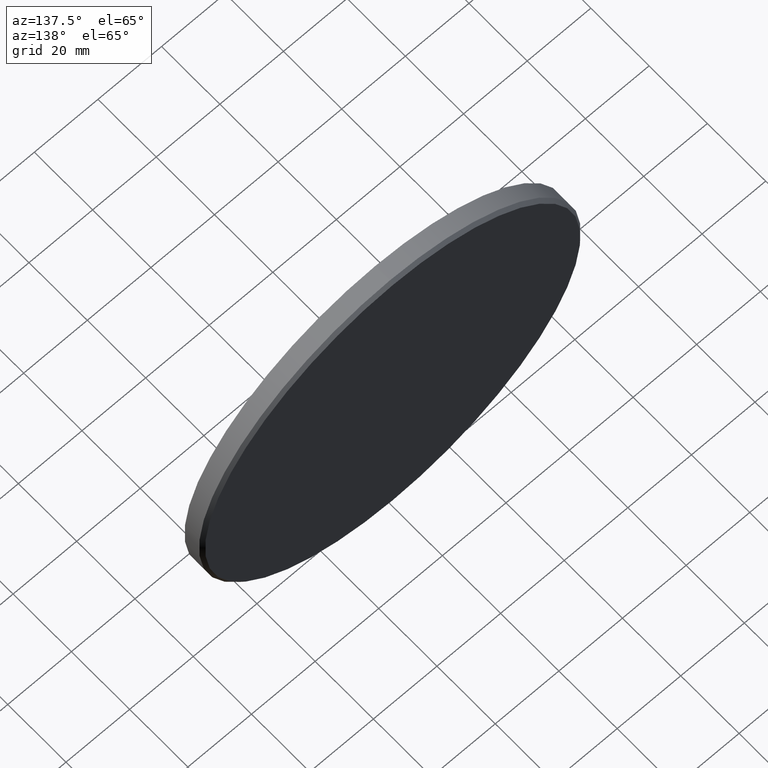
[diagram: clean part render]
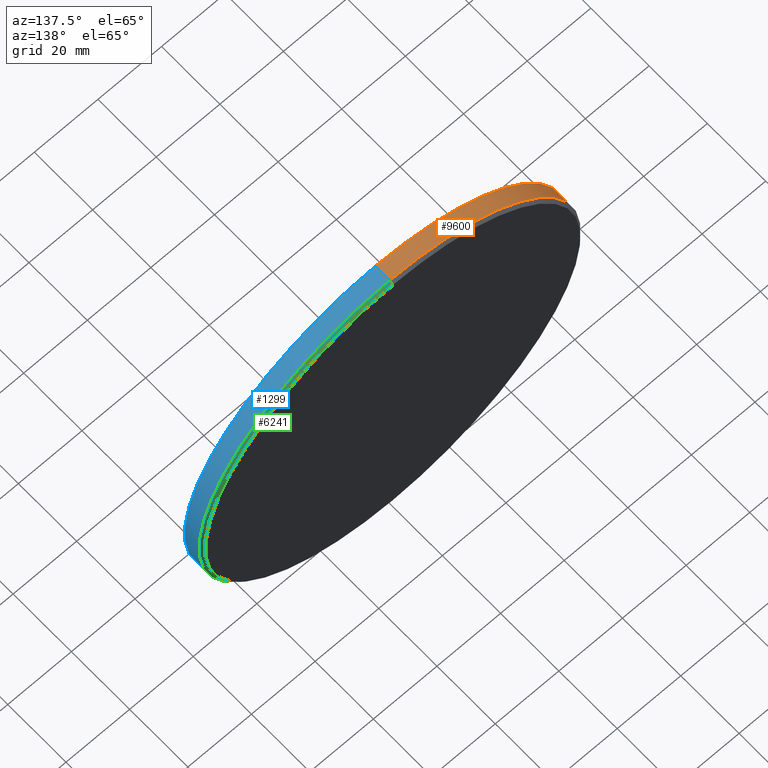
[diagram: same view with three faces highlighted in distinct colors, each labeled with its STEP entity id]
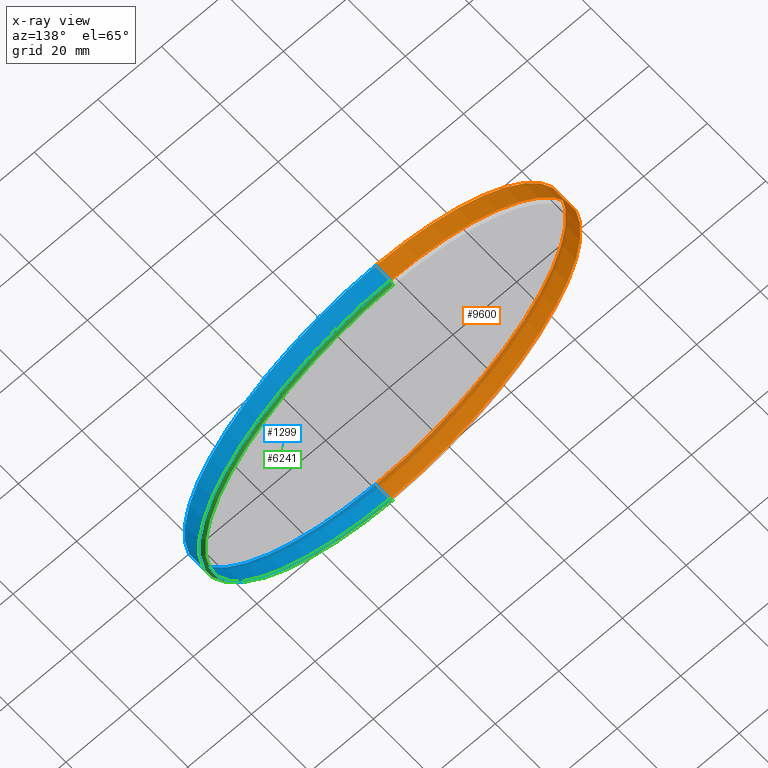
[diagram: x-ray of the same camera — body ghosted, the three highlighted faces saturated]
A machine part, auxiliary view with three faces highlighted in distinct colors.
The next image is the same camera in x-ray (body ghosted, the three faces saturated) — at least one of them is partly hidden behind the body in this view.
Their STEP definitions:

[orange] entity #9600 — the highlighted cylindrical surface (partial cylindrical patch) has radius 60 mm, axis along (-0, -1, -0).
#233 = CARTESIAN_POINT ( 'NONE',  ( 0.000000000000000000, -3.000000000000000000, 0.000000000000000000 ) ) ;
#424 = DIRECTION ( 'NONE',  ( 0.000000000000000000, 0.000000000000000000, -1.000000000000000000 ) ) ;
#684 = VECTOR ( 'NONE', #9785, 1000.000000000000000 ) ;
#1251 = EDGE_LOOP ( 'NONE', ( #10684, #1346, #8389, #5750 ) ) ;
#1346 = ORIENTED_EDGE ( 'NONE', *, *, #12110, .T. ) ;
#1391 = DIRECTION ( 'NONE',  ( 0.000000000000000000, 1.000000000000000000, 0.000000000000000000 ) ) ;
#2152 = CARTESIAN_POINT ( 'NONE',  ( 7.347880794884118356E-15, 3.000000000000000000, 60.00000000000000000 ) ) ;
#2234 = AXIS2_PLACEMENT_3D ( 'NONE', #8735, #9847, #5050 ) ;
#2447 = CARTESIAN_POINT ( 'NONE',  ( 7.347880794884118356E-15, -3.000000000000000000, 60.00000000000000000 ) ) ;
#2590 = CARTESIAN_POINT ( 'NONE',  ( 0.000000000000000000, 3.000000000000000000, 0.000000000000000000 ) ) ;
#4102 = AXIS2_PLACEMENT_3D ( 'NONE', #233, #1391, #9065 ) ;
#4354 = VECTOR ( 'NONE', #12093, 1000.000000000000000 ) ;
#4425 = VERTEX_POINT ( 'NONE', #8000 ) ;
#4512 = CARTESIAN_POINT ( 'NONE',  ( 0.000000000000000000, 3.000000000000000000, -60.00000000000000000 ) ) ;
#5050 = DIRECTION ( 'NONE',  ( 0.000000000000000000, 0.000000000000000000, 1.000000000000000000 ) ) ;
#5060 = CYLINDRICAL_SURFACE ( 'NONE', #10832, 60.00000000000000000 ) ;
#5061 = EDGE_CURVE ( 'NONE', #6419, #6970, #10335, .T. ) ;
#5750 = ORIENTED_EDGE ( 'NONE', *, *, #5061, .T. ) ;
#6410 = EDGE_CURVE ( 'NONE', #4425, #6419, #12692, .T. ) ;
#6419 = VERTEX_POINT ( 'NONE', #9907 ) ;
#6970 = VERTEX_POINT ( 'NONE', #2447 ) ;
#6979 = DIRECTION ( 'NONE',  ( -0.000000000000000000, -1.000000000000000000, -0.000000000000000000 ) ) ;
#7685 = LINE ( 'NONE', #2152, #684 ) ;
#8000 = CARTESIAN_POINT ( 'NONE',  ( 0.000000000000000000, 1.999999999999971356, -60.00000000000000000 ) ) ;
#8389 = ORIENTED_EDGE ( 'NONE', *, *, #6410, .T. ) ;
#8469 = FACE_OUTER_BOUND ( 'NONE', #1251, .T. ) ;
#8735 = CARTESIAN_POINT ( 'NONE',  ( 0.000000000000000000, 1.999999999999971356, 0.000000000000000000 ) ) ;
#8980 = VERTEX_POINT ( 'NONE', #13529 ) ;
#9065 = DIRECTION ( 'NONE',  ( 0.000000000000000000, 0.000000000000000000, 1.000000000000000000 ) ) ;
#9409 = CIRCLE ( 'NONE', #2234, 60.00000000000000000 ) ;
#9600 = ADVANCED_FACE ( 'NONE', ( #8469 ), #5060, .T. ) ;
#9785 = DIRECTION ( 'NONE',  ( -0.000000000000000000, -1.000000000000000000, -0.000000000000000000 ) ) ;
#9847 = DIRECTION ( 'NONE',  ( 0.000000000000000000, -1.000000000000000000, 0.000000000000000000 ) ) ;
#9907 = CARTESIAN_POINT ( 'NONE',  ( 0.000000000000000000, -3.000000000000000000, -60.00000000000000000 ) ) ;
#10335 = CIRCLE ( 'NONE', #4102, 60.00000000000000000 ) ;
#10684 = ORIENTED_EDGE ( 'NONE', *, *, #12524, .F. ) ;
#10832 = AXIS2_PLACEMENT_3D ( 'NONE', #2590, #6979, #424 ) ;
#12093 = DIRECTION ( 'NONE',  ( -0.000000000000000000, -1.000000000000000000, -0.000000000000000000 ) ) ;
#12110 = EDGE_CURVE ( 'NONE', #8980, #4425, #9409, .T. ) ;
#12524 = EDGE_CURVE ( 'NONE', #8980, #6970, #7685, .T. ) ;
#12692 = LINE ( 'NONE', #4512, #4354 ) ;
#13529 = CARTESIAN_POINT ( 'NONE',  ( 7.347880794884118356E-15, 1.999999999999971356, 60.00000000000000000 ) ) ;

[blue] entity #1299 — the highlighted cylindrical surface (partial cylindrical patch) has radius 60 mm, axis along (-0, -1, -0).
#559 = ORIENTED_EDGE ( 'NONE', *, *, #12524, .T. ) ;
#637 = CYLINDRICAL_SURFACE ( 'NONE', #5646, 60.00000000000000000 ) ;
#684 = VECTOR ( 'NONE', #9785, 1000.000000000000000 ) ;
#1033 = ORIENTED_EDGE ( 'NONE', *, *, #1110, .T. ) ;
#1110 = EDGE_CURVE ( 'NONE', #4425, #8980, #8129, .T. ) ;
#1299 = ADVANCED_FACE ( 'NONE', ( #11754 ), #637, .T. ) ;
#2152 = CARTESIAN_POINT ( 'NONE',  ( 7.347880794884118356E-15, 3.000000000000000000, 60.00000000000000000 ) ) ;
#2343 = ORIENTED_EDGE ( 'NONE', *, *, #6410, .F. ) ;
#2447 = CARTESIAN_POINT ( 'NONE',  ( 7.347880794884118356E-15, -3.000000000000000000, 60.00000000000000000 ) ) ;
#3631 = EDGE_LOOP ( 'NONE', ( #1033, #559, #7331, #2343 ) ) ;
#3946 = CARTESIAN_POINT ( 'NONE',  ( 0.000000000000000000, 3.000000000000000000, 0.000000000000000000 ) ) ;
#4354 = VECTOR ( 'NONE', #12093, 1000.000000000000000 ) ;
#4425 = VERTEX_POINT ( 'NONE', #8000 ) ;
#4512 = CARTESIAN_POINT ( 'NONE',  ( 0.000000000000000000, 3.000000000000000000, -60.00000000000000000 ) ) ;
#5137 = CARTESIAN_POINT ( 'NONE',  ( 0.000000000000000000, 1.999999999999971356, 0.000000000000000000 ) ) ;
#5500 = CARTESIAN_POINT ( 'NONE',  ( 0.000000000000000000, -3.000000000000000000, 0.000000000000000000 ) ) ;
#5646 = AXIS2_PLACEMENT_3D ( 'NONE', #3946, #12510, #10440 ) ;
#5701 = AXIS2_PLACEMENT_3D ( 'NONE', #5500, #14066, #13060 ) ;
#6410 = EDGE_CURVE ( 'NONE', #4425, #6419, #12692, .T. ) ;
#6419 = VERTEX_POINT ( 'NONE', #9907 ) ;
#6970 = VERTEX_POINT ( 'NONE', #2447 ) ;
#7331 = ORIENTED_EDGE ( 'NONE', *, *, #10643, .T. ) ;
#7685 = LINE ( 'NONE', #2152, #684 ) ;
#8000 = CARTESIAN_POINT ( 'NONE',  ( 0.000000000000000000, 1.999999999999971356, -60.00000000000000000 ) ) ;
#8129 = CIRCLE ( 'NONE', #9376, 60.00000000000000000 ) ;
#8470 = DIRECTION ( 'NONE',  ( 0.000000000000000000, 0.000000000000000000, 1.000000000000000000 ) ) ;
#8980 = VERTEX_POINT ( 'NONE', #13529 ) ;
#9376 = AXIS2_PLACEMENT_3D ( 'NONE', #5137, #9586, #8470 ) ;
#9436 = CIRCLE ( 'NONE', #5701, 60.00000000000000000 ) ;
#9586 = DIRECTION ( 'NONE',  ( 0.000000000000000000, -1.000000000000000000, 0.000000000000000000 ) ) ;
#9785 = DIRECTION ( 'NONE',  ( -0.000000000000000000, -1.000000000000000000, -0.000000000000000000 ) ) ;
#9907 = CARTESIAN_POINT ( 'NONE',  ( 0.000000000000000000, -3.000000000000000000, -60.00000000000000000 ) ) ;
#10440 = DIRECTION ( 'NONE',  ( 0.000000000000000000, 0.000000000000000000, -1.000000000000000000 ) ) ;
#10643 = EDGE_CURVE ( 'NONE', #6970, #6419, #9436, .T. ) ;
#11754 = FACE_OUTER_BOUND ( 'NONE', #3631, .T. ) ;
#12093 = DIRECTION ( 'NONE',  ( -0.000000000000000000, -1.000000000000000000, -0.000000000000000000 ) ) ;
#12510 = DIRECTION ( 'NONE',  ( -0.000000000000000000, -1.000000000000000000, -0.000000000000000000 ) ) ;
#12524 = EDGE_CURVE ( 'NONE', #8980, #6970, #7685, .T. ) ;
#12692 = LINE ( 'NONE', #4512, #4354 ) ;
#13060 = DIRECTION ( 'NONE',  ( 0.000000000000000000, 0.000000000000000000, 1.000000000000000000 ) ) ;
#13529 = CARTESIAN_POINT ( 'NONE',  ( 7.347880794884118356E-15, 1.999999999999971356, 60.00000000000000000 ) ) ;
#14066 = DIRECTION ( 'NONE',  ( 0.000000000000000000, 1.000000000000000000, 0.000000000000000000 ) ) ;

[green] entity #6241 — the highlighted conical surface has half-angle 45 deg.
#46 = EDGE_LOOP ( 'NONE', ( #584, #10085, #5457, #6533 ) ) ;
#584 = ORIENTED_EDGE ( 'NONE', *, *, #9924, .F. ) ;
#878 = CARTESIAN_POINT ( 'NONE',  ( 0.000000000000000000, 3.000000000000000000, -58.99999999999998579 ) ) ;
#1110 = EDGE_CURVE ( 'NONE', #4425, #8980, #8129, .T. ) ;
#1313 = EDGE_CURVE ( 'NONE', #13883, #8980, #1855, .T. ) ;
#1571 = CARTESIAN_POINT ( 'NONE',  ( 0.000000000000000000, 3.000000000000000000, -58.99999999999998579 ) ) ;
#1855 = LINE ( 'NONE', #8170, #5086 ) ;
#1889 = DIRECTION ( 'NONE',  ( 0.000000000000000000, -0.7071067811865524577, -0.7071067811865426878 ) ) ;
#2014 = AXIS2_PLACEMENT_3D ( 'NONE', #13893, #11777, #13735 ) ;
#2060 = EDGE_CURVE ( 'NONE', #5687, #4425, #11230, .T. ) ;
#3291 = DIRECTION ( 'NONE',  ( 0.000000000000000000, 1.000000000000000000, 0.000000000000000000 ) ) ;
#3462 = CIRCLE ( 'NONE', #7689, 58.99999999999998579 ) ;
#3657 = FACE_OUTER_BOUND ( 'NONE', #46, .T. ) ;
#4425 = VERTEX_POINT ( 'NONE', #8000 ) ;
#5086 = VECTOR ( 'NONE', #10390, 1000.000000000000000 ) ;
#5137 = CARTESIAN_POINT ( 'NONE',  ( 0.000000000000000000, 1.999999999999971356, 0.000000000000000000 ) ) ;
#5200 = CONICAL_SURFACE ( 'NONE', #2014, 58.99999999999998579, 0.7853981633974415066 ) ;
#5299 = CARTESIAN_POINT ( 'NONE',  ( 0.000000000000000000, 3.000000000000000000, 0.000000000000000000 ) ) ;
#5457 = ORIENTED_EDGE ( 'NONE', *, *, #1110, .F. ) ;
#5687 = VERTEX_POINT ( 'NONE', #1571 ) ;
#6241 = ADVANCED_FACE ( 'NONE', ( #3657 ), #5200, .T. ) ;
#6533 = ORIENTED_EDGE ( 'NONE', *, *, #2060, .F. ) ;
#6737 = CARTESIAN_POINT ( 'NONE',  ( 7.286648454926750781E-15, 3.000000000000000000, 58.99999999999998579 ) ) ;
#6946 = VECTOR ( 'NONE', #1889, 1000.000000000000000 ) ;
#7689 = AXIS2_PLACEMENT_3D ( 'NONE', #5299, #3291, #11016 ) ;
#8000 = CARTESIAN_POINT ( 'NONE',  ( 0.000000000000000000, 1.999999999999971356, -60.00000000000000000 ) ) ;
#8129 = CIRCLE ( 'NONE', #9376, 60.00000000000000000 ) ;
#8170 = CARTESIAN_POINT ( 'NONE',  ( 7.225416114969381630E-15, 3.000000000000000000, 58.99999999999998579 ) ) ;
#8470 = DIRECTION ( 'NONE',  ( 0.000000000000000000, 0.000000000000000000, 1.000000000000000000 ) ) ;
#8980 = VERTEX_POINT ( 'NONE', #13529 ) ;
#9376 = AXIS2_PLACEMENT_3D ( 'NONE', #5137, #9586, #8470 ) ;
#9586 = DIRECTION ( 'NONE',  ( 0.000000000000000000, -1.000000000000000000, 0.000000000000000000 ) ) ;
#9924 = EDGE_CURVE ( 'NONE', #13883, #5687, #3462, .T. ) ;
#10085 = ORIENTED_EDGE ( 'NONE', *, *, #1313, .T. ) ;
#10390 = DIRECTION ( 'NONE',  ( 8.659560562354874926E-17, -0.7071067811865524577, 0.7071067811865426878 ) ) ;
#11016 = DIRECTION ( 'NONE',  ( 0.000000000000000000, 0.000000000000000000, 1.000000000000000000 ) ) ;
#11230 = LINE ( 'NONE', #878, #6946 ) ;
#11777 = DIRECTION ( 'NONE',  ( 0.000000000000000000, -1.000000000000000000, 0.000000000000000000 ) ) ;
#13529 = CARTESIAN_POINT ( 'NONE',  ( 7.347880794884118356E-15, 1.999999999999971356, 60.00000000000000000 ) ) ;
#13735 = DIRECTION ( 'NONE',  ( 0.000000000000000000, 0.000000000000000000, -1.000000000000000000 ) ) ;
#13883 = VERTEX_POINT ( 'NONE', #6737 ) ;
#13893 = CARTESIAN_POINT ( 'NONE',  ( 0.000000000000000000, 3.000000000000000000, 0.000000000000000000 ) ) ;